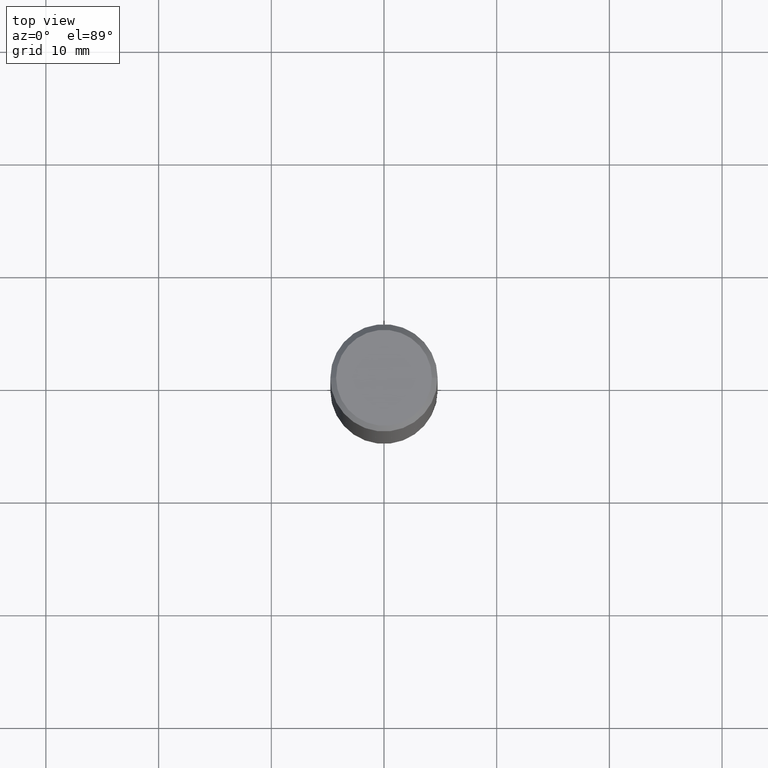
[diagram: clean part render]
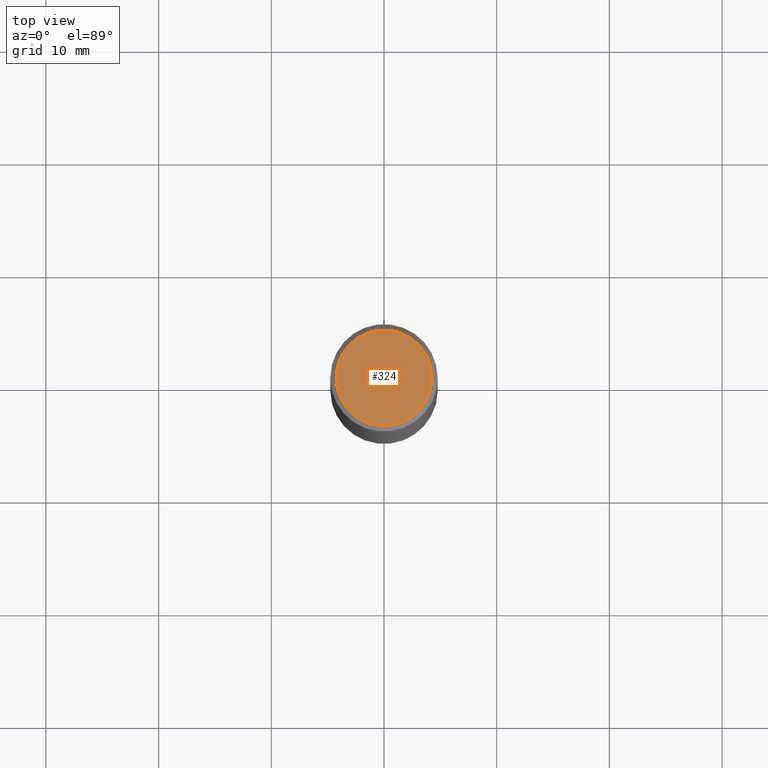
[diagram: same view with one face highlighted and labeled with its STEP entity id]
A machine part, top view. The second image highlights one B-rep face of the part: STEP entity #324.
In plain terms, the highlighted planar face has unit normal (0, -0, -1).
Its self-contained STEP definition (entity closure, byte-faithful):
#45 = AXIS2_PLACEMENT_3D ( 'NONE', #66, #180, #354 ) ;
#58 = DIRECTION ( 'NONE',  ( 1.000000000000000000, -6.982962677686266711E-15, 4.876176775795936914E-29 ) ) ;
#66 = CARTESIAN_POINT ( 'NONE',  ( 1.169646248512448609E-15, 0.1674999999999998435, -5.848231242562263753E-16 ) ) ;
#83 = DIRECTION ( 'NONE',  ( -2.445468806185136597E-29, 3.491481338843145583E-15, 1.000000000000000000 ) ) ;
#88 = CIRCLE ( 'NONE', #149, 0.1674999999999998435 ) ;
#93 = EDGE_LOOP ( 'NONE', ( #321, #162 ) ) ;
#121 = FACE_OUTER_BOUND ( 'NONE', #93, .T. ) ;
#149 = AXIS2_PLACEMENT_3D ( 'NONE', #364, #233, #315 ) ;
#162 = ORIENTED_EDGE ( 'NONE', *, *, #257, .T. ) ;
#178 = PLANE ( 'NONE',  #45 ) ;
#180 = DIRECTION ( 'NONE',  ( 2.438088387897960049E-29, -3.491481338843145188E-15, -1.000000000000000000 ) ) ;
#205 = CARTESIAN_POINT ( 'NONE',  ( -0.1674999999999998435, 1.204561061900879864E-15, -8.301862719484106184E-30 ) ) ;
#211 = AXIS2_PLACEMENT_3D ( 'NONE', #230, #83, #58 ) ;
#215 = VERTEX_POINT ( 'NONE', #205 ) ;
#230 = CARTESIAN_POINT ( 'NONE',  ( 0.000000000000000000, 0.000000000000000000, 0.000000000000000000 ) ) ;
#233 = DIRECTION ( 'NONE',  ( -2.445468806185136597E-29, 3.491481338843145583E-15, 1.000000000000000000 ) ) ;
#257 = EDGE_CURVE ( 'NONE', #308, #215, #88, .T. ) ;
#259 = CARTESIAN_POINT ( 'NONE',  ( 0.1674999999999998435, -1.252653207992877302E-15, 8.469775550109232378E-30 ) ) ;
#308 = VERTEX_POINT ( 'NONE', #259 ) ;
#315 = DIRECTION ( 'NONE',  ( 1.000000000000000000, -6.982962677686266711E-15, 4.876176775795936914E-29 ) ) ;
#319 = EDGE_CURVE ( 'NONE', #215, #308, #357, .T. ) ;
#321 = ORIENTED_EDGE ( 'NONE', *, *, #319, .T. ) ;
#324 = ADVANCED_FACE ( 'NONE', ( #121 ), #178, .F. ) ;
#354 = DIRECTION ( 'NONE',  ( -1.000000000000000000, 6.982962677686265922E-15, -4.876176775795935793E-29 ) ) ;
#357 = CIRCLE ( 'NONE', #211, 0.1674999999999998435 ) ;
#364 = CARTESIAN_POINT ( 'NONE',  ( 0.000000000000000000, 0.000000000000000000, 0.000000000000000000 ) ) ;